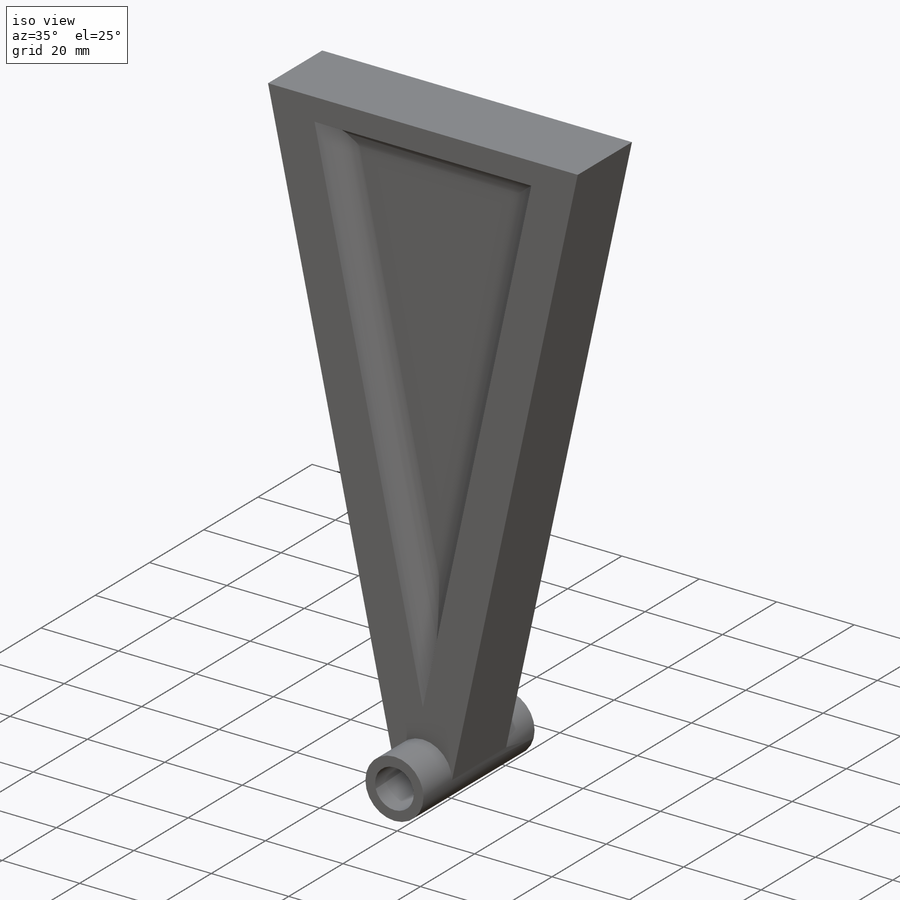
[diagram: iso view]
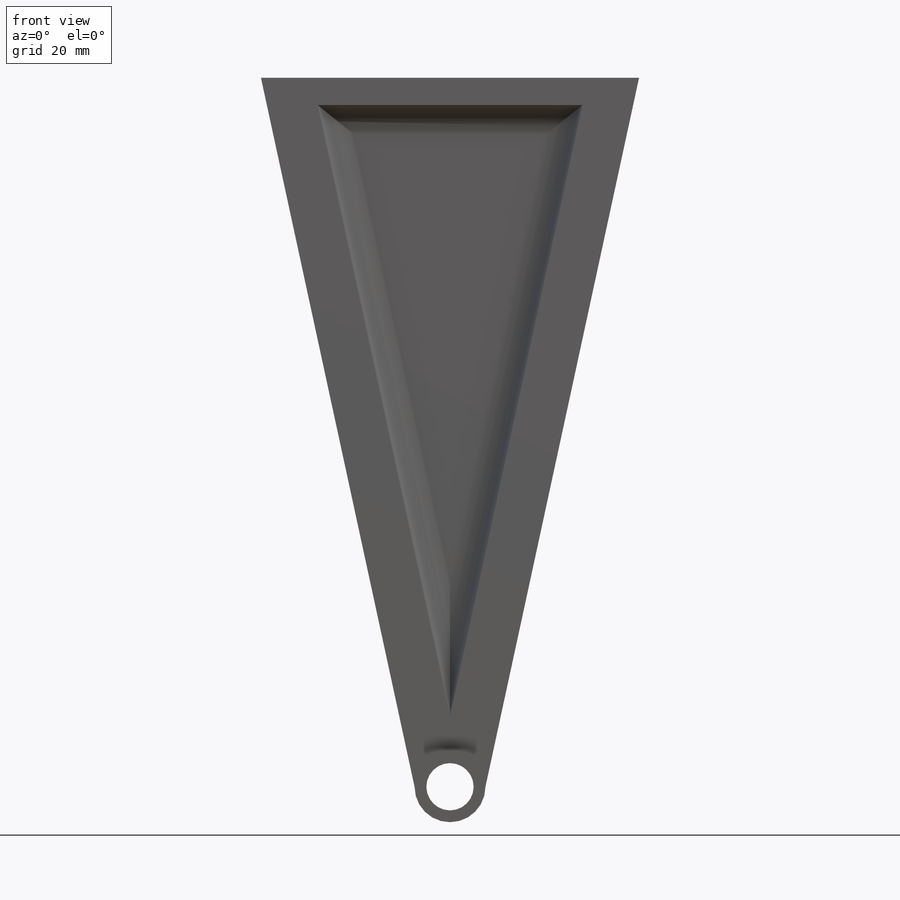
[diagram: front view]
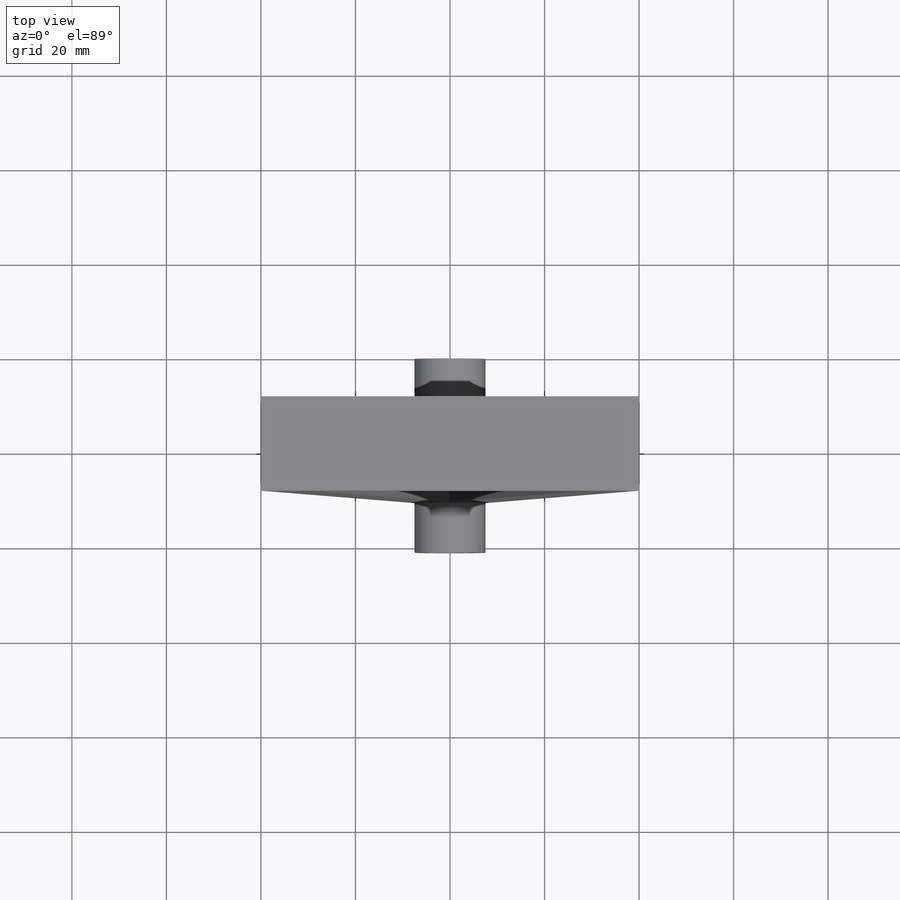
[diagram: top view]
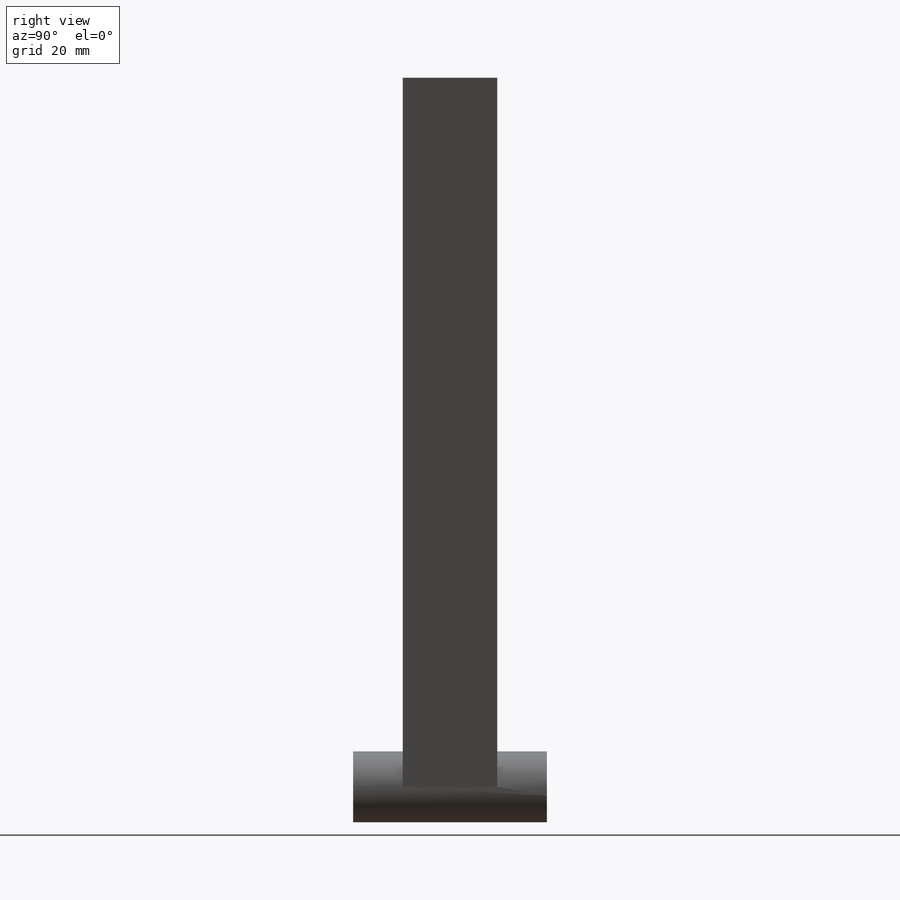
[diagram: right view]
SOLIDWORKS PART (.sldprt)
format: sldprt  version: not decoded by parser v0  size: 219,648 bytes
history: native  units: mm
features: sketch x5, cut_extrude x3, extrude x2, mirror x2, material x1, plane x1, fillet x1 (+16 scaffold rows collapsed)
feature tree (31):
  scaffold x16  (default folders/planes/origin — collapsed)
  material  "Cast Alloy Steel"
  sketch  "Sketch1"  dims[D1=10.0mm D2=15.0mm]
  extrude  "Boss-Extrude1"  Depth=41mm
  sketch  "Sketch2"  dims[c1.D1=20.0mm c1.D2=80.0mm c1.D3=40.0mm c1.D4=20.0mm c2.D4=270.0deg c3.D4=10.5mm]
  extrude  "Boss-Extrude2"  Depth=150mm
  sketch  "Sketch3"
  cut_extrude  "Cut-Extrude1"  Depth=150mm
  sketch  "Sketch4"
  cut_extrude  "Cut-Extrude2"  Depth=150mm
  mirror  "Mirror1"
  sketch  "Sketch5"  dims[D1=12.0mm D2=12.0mm D3=15.0mm D4=8.0mm D5=~131.088394mm]
  cut_extrude  "Cut-Extrude3"  Depth=6mm
  plane  "Plane1"  Offset=20mm
  mirror  "Mirror2"
  fillet  "Fillet1"  Radius=6mm
decode coverage: 9 of 13 modeling features carry decoded parameters
note: ~ marks probable driven/reference dimensions
note: suppression state not decoded; provenance and decode notes live in map.json
